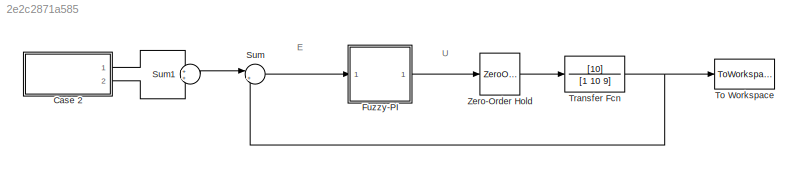
MODEL slx_2e2c2871a585
KIND model
CONFIG AbsTol = auto
CONFIG FixedStep = 0.01
CONFIG MaxStep = auto
CONFIG MinStep = auto
CONFIG RelTol = 1e-3
CONFIG SampleTimeConstraint = Unconstrained
CONFIG Solver = ode3
CONFIG SolverMode = Auto
CONFIG SolverName = ode3
CONFIG StartTime = 0.0
CONFIG StopTime = 10
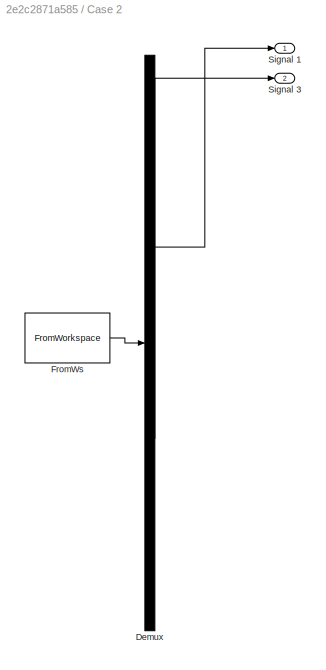
BLOCK [SubSystem] Case 2
  ClipboardFcn = sigbuilder_block('clipboard');
  CloseFcn = sigbuilder_block('close');
  ContinueFcn = sigbuilder_block('continue');
  CopyFcn = sigbuilder_block('copy');
  DeleteFcn = sigbuilder_block('delete');
  LoadFcn = sigbuilder_block('load');
  MaskHideContents = on
  ModelCloseFcn = sigbuilder_block('modelClose');
  NameChangeFcn = sigbuilder_block('namechange');
  OpenFcn = sigbuilder_block('open',[437.6 199.2 550.4 400 ]);
  PauseFcn = sigbuilder_block('pause');
  Ports = [0, 2]
  PreSaveFcn = sigbuilder_block('preSave');
  RequestExecContextInheritance = off
  StartFcn = sigbuilder_block('start');
  StopFcn = sigbuilder_block('stop');
  Tag = STV Subsys
BLOCK [Demux] Case 2/Demux
  Outputs = 2
  Ports = [1, 2]
  Tag = STV Demux
BLOCK [FromWorkspace] Case 2/FromWs
  SampleTime = 0
  Tag = STV FromWs
  VariableName = tuvar
  ZeroCross = on
BLOCK [Outport] Case 2/Signal 1
  IconDisplay = Port number
  Tag = STV Outport
BLOCK [Outport] Case 2/Signal 3
  IconDisplay = Port number
  Port = 2
  Tag = STV Outport
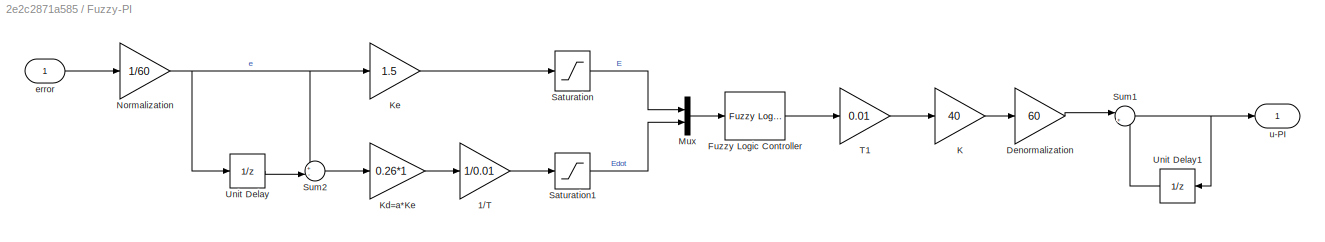
BLOCK [SubSystem] Fuzzy-PI
  Ports = [1, 1]
  RequestExecContextInheritance = off
BLOCK [Gain] Fuzzy-PI/1//T
  Gain = 1/0.01
  OutDataTypeStr = Inherit: Inherit via internal rule
  ParamDataTypeStr = Inherit: Inherit via internal rule
  SaturateOnIntegerOverflow = off
BLOCK [Gain] Fuzzy-PI/Denormalization
  Gain = 60
  OutDataTypeStr = Inherit: Inherit via internal rule
  ParamDataTypeStr = Inherit: Inherit via internal rule
  SaturateOnIntegerOverflow = off
BLOCK [Reference] Fuzzy-PI/Fuzzy Logic Controller  REF=fuzblock/Fuzzy Logic   (lib defined in mdl_858b3b3e7478)
Controller
  Ports = [1, 1]
  SourceBlock = fuzblock/Fuzzy Logic \nController
  SourceType = FIS
  fis = 'FuzzyController.fis'
BLOCK [Gain] Fuzzy-PI/K
  Gain = 40
  OutDataTypeStr = Inherit: Inherit via internal rule
  ParamDataTypeStr = Inherit: Inherit via internal rule
  SaturateOnIntegerOverflow = off
BLOCK [Gain] Fuzzy-PI/Kd=a*Ke
  Gain = 0.26*1
  OutDataTypeStr = Inherit: Inherit via internal rule
  ParamDataTypeStr = Inherit: Inherit via internal rule
  SaturateOnIntegerOverflow = off
BLOCK [Gain] Fuzzy-PI/Ke
  Gain = 1.5
  OutDataTypeStr = Inherit: Inherit via internal rule
  ParamDataTypeStr = Inherit: Inherit via internal rule
  SaturateOnIntegerOverflow = off
BLOCK [Mux] Fuzzy-PI/Mux
  DisplayOption = bar
  Inputs = 2
  Ports = [2, 1]
BLOCK [Gain] Fuzzy-PI/Normalization
  Gain = 1/60
  OutDataTypeStr = Inherit: Inherit via internal rule
  ParamDataTypeStr = Inherit: Inherit via internal rule
  SaturateOnIntegerOverflow = off
BLOCK [Saturate] Fuzzy-PI/Saturation
  InputPortMap = u0
  LowerLimit = -1
  Ports = [1, 1]
  UpperLimit = 1
BLOCK [Saturate] Fuzzy-PI/Saturation1
  InputPortMap = u0
  LowerLimit = -1
  Ports = [1, 1]
  UpperLimit = 1
BLOCK [Sum] Fuzzy-PI/Sum1
  IconShape = round
  InputSameDT = off
  Inputs = |++
  OutDataTypeStr = Inherit: Inherit via internal rule
  Ports = [2, 1]
  SaturateOnIntegerOverflow = off
BLOCK [Sum] Fuzzy-PI/Sum2
  IconShape = round
  InputSameDT = off
  Inputs = +-|
  OutDataTypeStr = Inherit: Inherit via internal rule
  Ports = [2, 1]
  SaturateOnIntegerOverflow = off
BLOCK [Gain] Fuzzy-PI/T1
  Gain = 0.01
  OutDataTypeStr = Inherit: Inherit via internal rule
  ParamDataTypeStr = Inherit: Inherit via internal rule
  SaturateOnIntegerOverflow = off
BLOCK [UnitDelay] Fuzzy-PI/Unit Delay
  InputProcessing = Elements as channels (sample based)
  SampleTime = -1
BLOCK [UnitDelay] Fuzzy-PI/Unit Delay1
  InputProcessing = Elements as channels (sample based)
  SampleTime = -1
BLOCK [Inport] Fuzzy-PI/error
  IconDisplay = Port number
BLOCK [Outport] Fuzzy-PI/u-PI
  IconDisplay = Port number
BLOCK [Sum] Sum
  IconShape = round
  InputSameDT = off
  Inputs = |+-
  OutDataTypeStr = Inherit: Inherit via internal rule
  Ports = [2, 1]
  SaturateOnIntegerOverflow = off
BLOCK [Sum] Sum1
  IconShape = round
  InputSameDT = off
  OutDataTypeStr = Inherit: Inherit via internal rule
  Ports = [2, 1]
  SaturateOnIntegerOverflow = off
BLOCK [ToWorkspace] To Workspace
  FixptAsFi = on
  MaxDataPoints = inf
  Ports = [1]
  SampleTime = -1
  Save2DSignal = 3-D array (concatenate along third dimension)
  SaveFormat = Timeseries
  VariableName = OutStep
BLOCK [TransferFcn] Transfer Fcn
  Denominator = [1 10 9]
  Numerator = [10]
BLOCK [ZeroOrderHold] Zero-Order Hold
  SampleTime = 0.01
ANNOTATION (root): E
ANNOTATION (root): U
LINE Case 2:1 -> Sum1:1
LINE Case 2:2 -> Sum1:2
LINE Fuzzy-PI/1//T:1 -> Fuzzy-PI/Saturation1:1
LINE Fuzzy-PI/Denormalization:1 -> Fuzzy-PI/Sum1:1
LINE Fuzzy-PI/Fuzzy Logic Controller:1 -> Fuzzy-PI/T1:1
LINE Fuzzy-PI/K:1 -> Fuzzy-PI/Denormalization:1
LINE Fuzzy-PI/Kd=a*Ke:1 -> Fuzzy-PI/1//T:1
LINE Fuzzy-PI/Ke:1 -> Fuzzy-PI/Saturation:1
LINE Fuzzy-PI/Mux:1 -> Fuzzy-PI/Fuzzy Logic Controller:1
NET Fuzzy-PI/Normalization:1 -> Fuzzy-PI/Ke:1, Fuzzy-PI/Sum2:1, Fuzzy-PI/Unit Delay:1
LINE Fuzzy-PI/Saturation1:1 -> Fuzzy-PI/Mux:2
LINE Fuzzy-PI/Saturation:1 -> Fuzzy-PI/Mux:1
NET Fuzzy-PI/Sum1:1 -> Fuzzy-PI/Unit Delay1:1, Fuzzy-PI/u-PI:1
LINE Fuzzy-PI/Sum2:1 -> Fuzzy-PI/Kd=a*Ke:1
LINE Fuzzy-PI/T1:1 -> Fuzzy-PI/K:1
LINE Fuzzy-PI/Unit Delay1:1 -> Fuzzy-PI/Sum1:2
LINE Fuzzy-PI/Unit Delay:1 -> Fuzzy-PI/Sum2:2
LINE Fuzzy-PI/error:1 -> Fuzzy-PI/Normalization:1
LINE Fuzzy-PI:1 -> Zero-Order Hold:1
LINE Sum1:1 -> Sum:1
LINE Sum:1 -> Fuzzy-PI:1
NET Transfer Fcn:1 -> Sum:2, To Workspace:1
LINE Zero-Order Hold:1 -> Transfer Fcn:1
note: NET lines group one-source signal fan-out (src -> all destinations, sorted); 1:1 wires keep LINE
